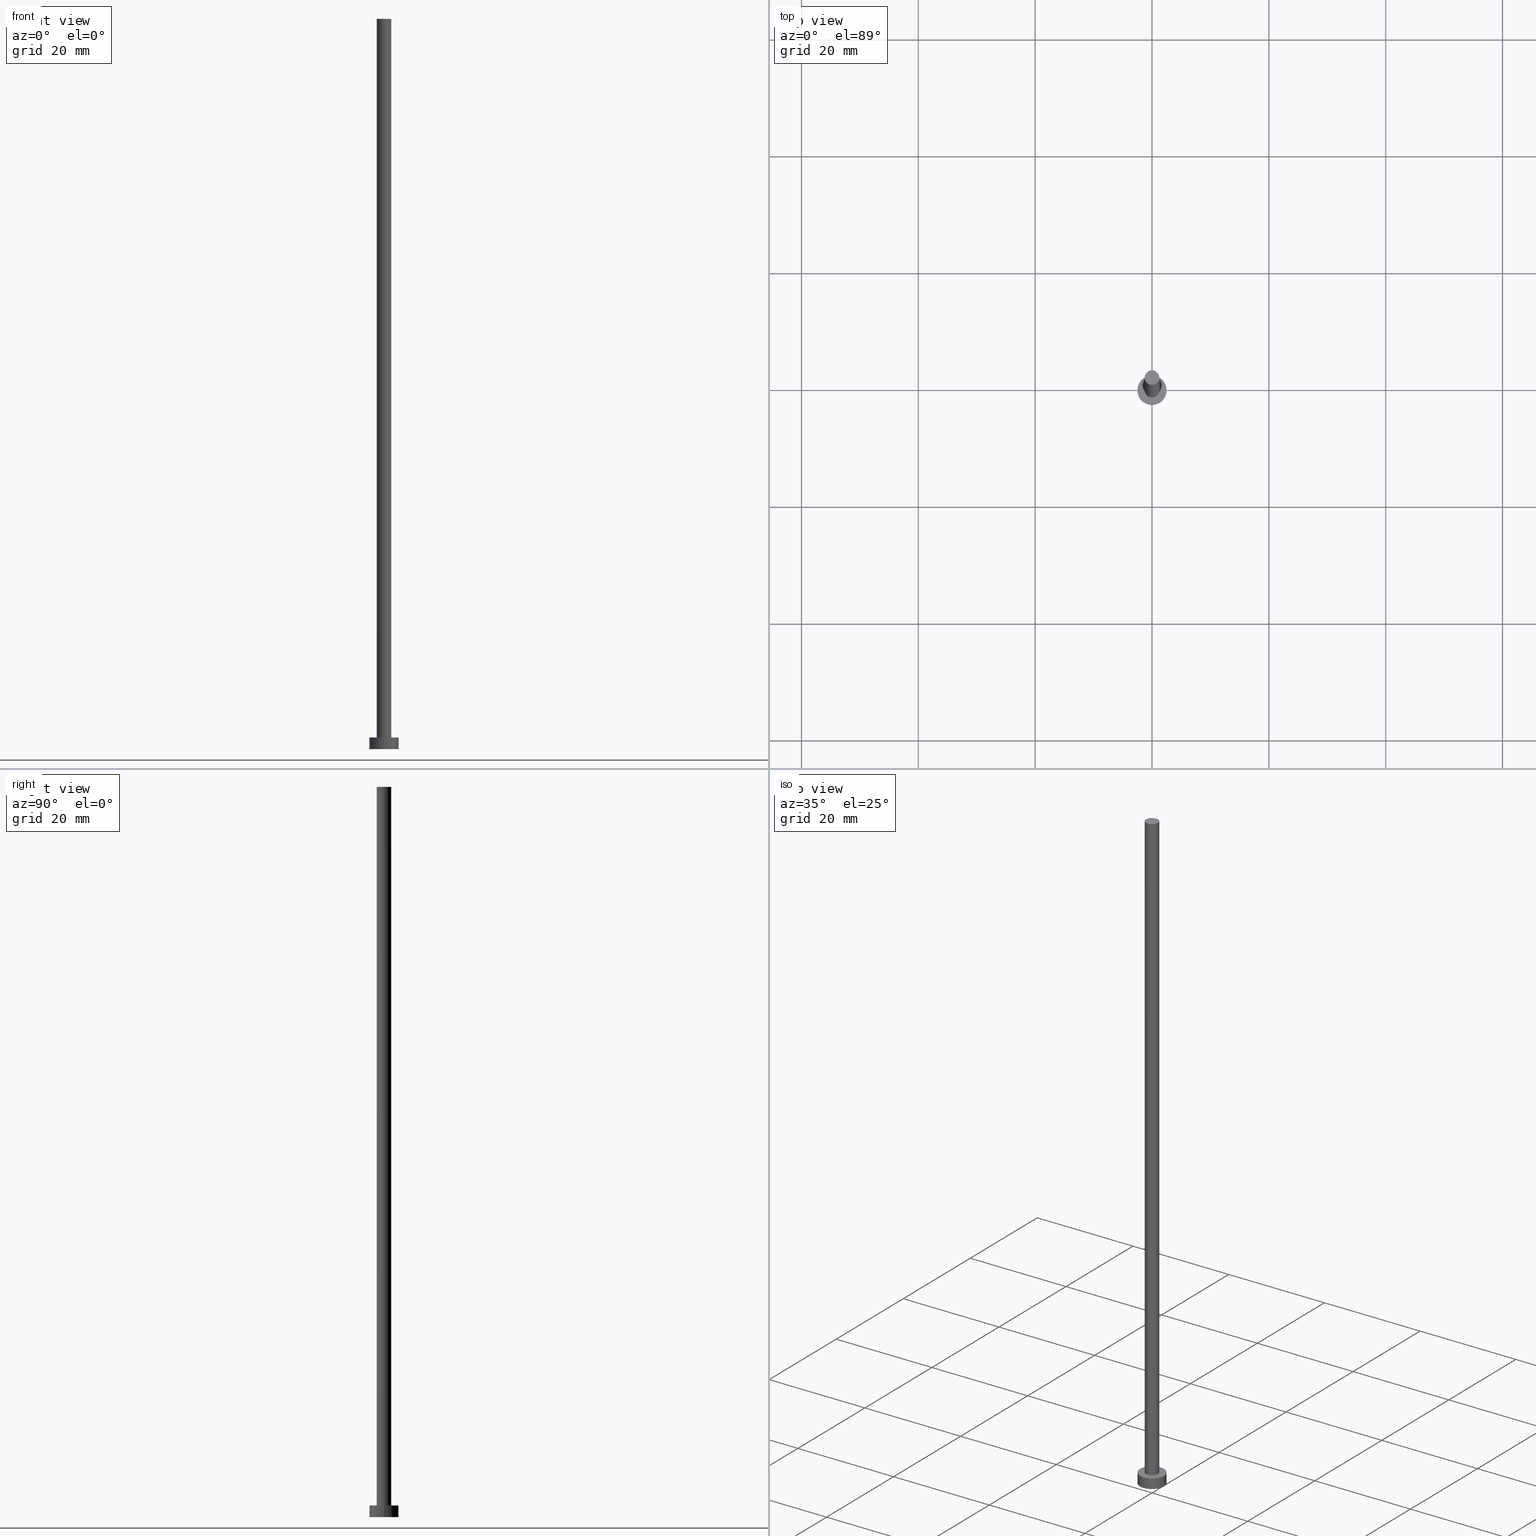
[diagram: canonical four-view strip — front | top / right | iso, engineering-drawing reading convention]
A machine part, canonical four-view strip (front | top / right | iso — engineering-drawing reading convention). The complete STEP part file that produces these views, byte-faithful:
ISO-10303-21;
HEADER;
FILE_DESCRIPTION (( 'STEP AP203' ),
    '1' );
FILE_NAME ('b8d0.STEP',
    '2023-02-12T12:49:30',
    ( '' ),
    ( '' ),
    'SwSTEP 2.0',
    'SolidWorks 2019',
    '' );
FILE_SCHEMA (( 'CONFIG_CONTROL_DESIGN' ));
ENDSEC;

DATA;
#1 = EDGE_CURVE ( 'NONE', #81, #77, #220, .T. ) ;
#2 = CARTESIAN_POINT ( 'NONE',  ( 0.000000000000000000, 0.000000000000000000, 0.000000000000000000 ) ) ;
#3 = ORIENTED_EDGE ( 'NONE', *, *, #1, .F. ) ;
#4 = PERSON_AND_ORGANIZATION ( #213, #88 ) ;
#5 = EDGE_LOOP ( 'NONE', ( #31, #200 ) ) ;
#6 = ADVANCED_FACE ( 'NONE', ( #227 ), #60, .F. ) ;
#7 = FACE_OUTER_BOUND ( 'NONE', #214, .T. ) ;
#8 = DIRECTION ( 'NONE',  ( 1.000000000000000000, 0.000000000000000000, 0.000000000000000000 ) ) ;
#9 = CARTESIAN_POINT ( 'NONE',  ( 2.500000000000000000, 3.061616997868383141E-16, 2.000000000000000000 ) ) ;
#10 = CIRCLE ( 'NONE', #110, 2.500000000000000000 ) ;
#11 = LINE ( 'NONE', #113, #167 ) ;
#12 =( NAMED_UNIT ( * ) SI_UNIT ( $, .STERADIAN. ) SOLID_ANGLE_UNIT ( ) );
#13 = DIRECTION ( 'NONE',  ( -0.000000000000000000, -0.000000000000000000, -1.000000000000000000 ) ) ;
#14 = PERSON_AND_ORGANIZATION_ROLE ( 'design_supplier' ) ;
#15 = CALENDAR_DATE ( 2023, 12, 2 ) ;
#16 = CALENDAR_DATE ( 2023, 12, 2 ) ;
#17 = PRODUCT_RELATED_PRODUCT_CATEGORY ( 'detail', '', ( #142 ) ) ;
#18 = ORIENTED_EDGE ( 'NONE', *, *, #243, .T. ) ;
#19 = EDGE_CURVE ( 'NONE', #77, #81, #75, .T. ) ;
#20 = ORIENTED_EDGE ( 'NONE', *, *, #64, .F. ) ;
#21 = CARTESIAN_POINT ( 'NONE',  ( 2.500000000000000000, 3.061616997868383141E-16, 2.000000000000000000 ) ) ;
#22 = SHAPE_DEFINITION_REPRESENTATION ( #100, #51 ) ;
#23 = APPROVAL_ROLE ( '' ) ;
#24 = MANIFOLD_SOLID_BREP ( 'P�idat vysunut�m3', #171 ) ;
#25 = CALENDAR_DATE ( 2023, 12, 2 ) ;
#26 = DIRECTION ( 'NONE',  ( 1.000000000000000000, 0.000000000000000000, 0.000000000000000000 ) ) ;
#27 = CARTESIAN_POINT ( 'NONE',  ( 0.000000000000000000, 0.000000000000000000, 2.000000000000000000 ) ) ;
#28 = APPROVAL ( #169, 'NEUR�EN�' ) ;
#29 = CARTESIAN_POINT ( 'NONE',  ( -1.250000000000000000, 0.000000000000000000, 125.0000000000000000 ) ) ;
#30 = APPLICATION_CONTEXT ( 'configuration controlled 3d designs of mechanical parts and assemblies' ) ;
#31 = ORIENTED_EDGE ( 'NONE', *, *, #1, .T. ) ;
#32 = DATE_AND_TIME ( #15, #176 ) ;
#33 = AXIS2_PLACEMENT_3D ( 'NONE', #2, #154, #56 ) ;
#34 = PERSON_AND_ORGANIZATION ( #213, #88 ) ;
#35 = EDGE_CURVE ( 'NONE', #87, #93, #52, .T. ) ;
#36 = DIRECTION ( 'NONE',  ( 0.000000000000000000, 0.000000000000000000, 1.000000000000000000 ) ) ;
#37 = ORIENTED_EDGE ( 'NONE', *, *, #119, .T. ) ;
#38 = APPROVAL_STATUS ( 'not_yet_approved' ) ;
#39 = VECTOR ( 'NONE', #157, 1000.000000000000000 ) ;
#40 = LOCAL_TIME ( 13, 49, 30.00000000000000000, #74 ) ;
#41 = DIRECTION ( 'NONE',  ( 0.000000000000000000, 0.000000000000000000, 1.000000000000000000 ) ) ;
#42 = ADVANCED_FACE ( 'NONE', ( #192, #238 ), #58, .T. ) ;
#43 = ORIENTED_EDGE ( 'NONE', *, *, #64, .T. ) ;
#44 = APPROVAL ( #130, 'NEUR�EN�' ) ;
#45 = CARTESIAN_POINT ( 'NONE',  ( 0.000000000000000000, 0.000000000000000000, 125.0000000000000000 ) ) ;
#46 = COORDINATED_UNIVERSAL_TIME_OFFSET ( 1, 0, .AHEAD. ) ;
#47 = DIRECTION ( 'NONE',  ( -0.000000000000000000, -0.000000000000000000, -1.000000000000000000 ) ) ;
#48 = DIRECTION ( 'NONE',  ( -0.000000000000000000, -0.000000000000000000, -1.000000000000000000 ) ) ;
#49 = AXIS2_PLACEMENT_3D ( 'NONE', #147, #164, #85 ) ;
#50 = EDGE_CURVE ( 'NONE', #77, #93, #225, .T. ) ;
#51 = ADVANCED_BREP_SHAPE_REPRESENTATION ( 'b8d0', ( #24, #33 ), #143 ) ;
#52 = CIRCLE ( 'NONE', #198, 2.500000000000000000 ) ;
#53 = CARTESIAN_POINT ( 'NONE',  ( -1.250000000000000000, 0.000000000000000000, 2.000000000000000000 ) ) ;
#54 = CIRCLE ( 'NONE', #168, 1.250000000000000000 ) ;
#55 = ADVANCED_FACE ( 'NONE', ( #134 ), #158, .T. ) ;
#56 = DIRECTION ( 'NONE',  ( 1.000000000000000000, 0.000000000000000000, 0.000000000000000000 ) ) ;
#57 = VERTEX_POINT ( 'NONE', #62 ) ;
#58 = PLANE ( 'NONE',  #177 ) ;
#59 = ORIENTED_EDGE ( 'NONE', *, *, #191, .F. ) ;
#60 = PLANE ( 'NONE',  #61 ) ;
#61 = AXIS2_PLACEMENT_3D ( 'NONE', #219, #132, #172 ) ;
#62 = CARTESIAN_POINT ( 'NONE',  ( 1.250000000000000000, 1.530808498934191571E-16, 125.0000000000000000 ) ) ;
#63 = ORIENTED_EDGE ( 'NONE', *, *, #50, .T. ) ;
#64 = EDGE_CURVE ( 'NONE', #125, #244, #111, .T. ) ;
#65 = CARTESIAN_POINT ( 'NONE',  ( 1.250000000000000000, 1.530808498934191571E-16, 2.000000000000000000 ) ) ;
#66 = CC_DESIGN_APPROVAL ( #28, ( #109 ) ) ;
#67 = EDGE_LOOP ( 'NONE', ( #140, #153, #43, #37 ) ) ;
#68 = LINE ( 'NONE', #231, #159 ) ;
#69 = APPROVAL_PERSON_ORGANIZATION ( #166, #96, #248 ) ;
#70 = DIRECTION ( 'NONE',  ( -0.000000000000000000, -0.000000000000000000, -1.000000000000000000 ) ) ;
#71 = PERSON_AND_ORGANIZATION ( #213, #88 ) ;
#72 = CC_DESIGN_PERSON_AND_ORGANIZATION_ASSIGNMENT ( #34, #234, ( #142 ) ) ;
#73 = EDGE_LOOP ( 'NONE', ( #235, #173 ) ) ;
#74 = COORDINATED_UNIVERSAL_TIME_OFFSET ( 1, 0, .AHEAD. ) ;
#75 = CIRCLE ( 'NONE', #205, 2.500000000000000000 ) ;
#76 = CC_DESIGN_DATE_AND_TIME_ASSIGNMENT ( #194, #165, ( #221 ) ) ;
#77 = VERTEX_POINT ( 'NONE', #9 ) ;
#78 = DIRECTION ( 'NONE',  ( 0.000000000000000000, 0.000000000000000000, 1.000000000000000000 ) ) ;
#79 = UNCERTAINTY_MEASURE_WITH_UNIT (LENGTH_MEASURE( 1.000000000000000082E-05 ), #149, 'distance_accuracy_value', 'NONE');
#80 = ORIENTED_EDGE ( 'NONE', *, *, #50, .F. ) ;
#81 = VERTEX_POINT ( 'NONE', #99 ) ;
#82 = DIRECTION ( 'NONE',  ( -1.000000000000000000, 0.000000000000000000, 0.000000000000000000 ) ) ;
#83 = DIRECTION ( 'NONE',  ( 0.000000000000000000, 0.000000000000000000, 1.000000000000000000 ) ) ;
#84 = CARTESIAN_POINT ( 'NONE',  ( 0.000000000000000000, 0.000000000000000000, 125.0000000000000000 ) ) ;
#85 = DIRECTION ( 'NONE',  ( 1.000000000000000000, 0.000000000000000000, 0.000000000000000000 ) ) ;
#86 = CC_DESIGN_DATE_AND_TIME_ASSIGNMENT ( #90, #237, ( #109 ) ) ;
#87 = VERTEX_POINT ( 'NONE', #160 ) ;
#88 = ORGANIZATION ( 'NEUR�EN�', 'NEUR�EN�', '' ) ;
#89 = PERSON_AND_ORGANIZATION ( #213, #88 ) ;
#90 = DATE_AND_TIME ( #16, #98 ) ;
#91 = ORIENTED_EDGE ( 'NONE', *, *, #133, .T. ) ;
#92 = ADVANCED_FACE ( 'NONE', ( #242 ), #138, .T. ) ;
#93 = VERTEX_POINT ( 'NONE', #114 ) ;
#94 = CALENDAR_DATE ( 2023, 12, 2 ) ;
#95 = APPROVAL_PERSON_ORGANIZATION ( #4, #44, #23 ) ;
#96 = APPROVAL ( #38, 'NEUR�EN�' ) ;
#97 = AXIS2_PLACEMENT_3D ( 'NONE', #222, #47, #181 ) ;
#98 = LOCAL_TIME ( 13, 49, 30.00000000000000000, #212 ) ;
#99 = CARTESIAN_POINT ( 'NONE',  ( -2.500000000000000000, 0.000000000000000000, 2.000000000000000000 ) ) ;
#100 = PRODUCT_DEFINITION_SHAPE ( 'NONE', 'NONE',  #109 ) ;
#101 = DIRECTION ( 'NONE',  ( 0.000000000000000000, 0.000000000000000000, 1.000000000000000000 ) ) ;
#102 = DIRECTION ( 'NONE',  ( 0.000000000000000000, 0.000000000000000000, 1.000000000000000000 ) ) ;
#103 = LOCAL_TIME ( 13, 49, 30.00000000000000000, #46 ) ;
#104 = APPROVAL_DATE_TIME ( #122, #28 ) ;
#105 = MECHANICAL_CONTEXT ( 'NONE', #250, 'mechanical' ) ;
#106 = ORIENTED_EDGE ( 'NONE', *, *, #19, .F. ) ;
#107 = EDGE_LOOP ( 'NONE', ( #106, #63, #216, #124 ) ) ;
#108 = DIRECTION ( 'NONE',  ( 1.000000000000000000, 0.000000000000000000, 0.000000000000000000 ) ) ;
#109 = PRODUCT_DEFINITION ( 'NEZN�M�', '', #179, #139 ) ;
#110 = AXIS2_PLACEMENT_3D ( 'NONE', #112, #101, #135 ) ;
#111 = LINE ( 'NONE', #180, #187 ) ;
#112 = CARTESIAN_POINT ( 'NONE',  ( 0.000000000000000000, 0.000000000000000000, 0.000000000000000000 ) ) ;
#113 = CARTESIAN_POINT ( 'NONE',  ( -2.500000000000000000, 0.000000000000000000, 2.000000000000000000 ) ) ;
#114 = CARTESIAN_POINT ( 'NONE',  ( 2.500000000000000000, 3.061616997868383141E-16, 0.000000000000000000 ) ) ;
#115 = DIRECTION ( 'NONE',  ( -0.000000000000000000, -0.000000000000000000, -1.000000000000000000 ) ) ;
#116 = AXIS2_PLACEMENT_3D ( 'NONE', #253, #115, #228 ) ;
#117 = CYLINDRICAL_SURFACE ( 'NONE', #116, 2.500000000000000000 ) ;
#118 = PERSON_AND_ORGANIZATION_ROLE ( 'creator' ) ;
#119 = EDGE_CURVE ( 'NONE', #244, #175, #217, .T. ) ;
#120 = CC_DESIGN_SECURITY_CLASSIFICATION ( #221, ( #179 ) ) ;
#121 = AXIS2_PLACEMENT_3D ( 'NONE', #27, #102, #148 ) ;
#122 = DATE_AND_TIME ( #230, #40 ) ;
#123 = ORIENTED_EDGE ( 'NONE', *, *, #191, .T. ) ;
#124 = ORIENTED_EDGE ( 'NONE', *, *, #156, .F. ) ;
#125 = VERTEX_POINT ( 'NONE', #29 ) ;
#126 = DIRECTION ( 'NONE',  ( 1.000000000000000000, 0.000000000000000000, 0.000000000000000000 ) ) ;
#127 = CIRCLE ( 'NONE', #239, 1.250000000000000000 ) ;
#128 = CC_DESIGN_APPROVAL ( #44, ( #221 ) ) ;
#129 = ORIENTED_EDGE ( 'NONE', *, *, #174, .T. ) ;
#130 = APPROVAL_STATUS ( 'not_yet_approved' ) ;
#131 = CARTESIAN_POINT ( 'NONE',  ( 0.000000000000000000, 0.000000000000000000, 2.000000000000000000 ) ) ;
#132 = DIRECTION ( 'NONE',  ( 0.000000000000000000, 0.000000000000000000, 1.000000000000000000 ) ) ;
#133 = EDGE_CURVE ( 'NONE', #125, #57, #127, .T. ) ;
#134 = FACE_OUTER_BOUND ( 'NONE', #170, .T. ) ;
#135 = DIRECTION ( 'NONE',  ( 1.000000000000000000, 0.000000000000000000, 0.000000000000000000 ) ) ;
#136 = DIRECTION ( 'NONE',  ( 1.000000000000000000, 0.000000000000000000, -0.000000000000000000 ) ) ;
#137 = CC_DESIGN_PERSON_AND_ORGANIZATION_ASSIGNMENT ( #71, #254, ( #221 ) ) ;
#138 = CYLINDRICAL_SURFACE ( 'NONE', #249, 2.500000000000000000 ) ;
#139 = DESIGN_CONTEXT ( 'detailed design', #30, 'design' ) ;
#140 = ORIENTED_EDGE ( 'NONE', *, *, #243, .F. ) ;
#141 = COORDINATED_UNIVERSAL_TIME_OFFSET ( 1, 0, .AHEAD. ) ;
#142 = PRODUCT ( 'b8d0', 'b8d0', '', ( #105 ) ) ;
#143 =( GEOMETRIC_REPRESENTATION_CONTEXT ( 3 ) GLOBAL_UNCERTAINTY_ASSIGNED_CONTEXT ( ( #79 ) ) GLOBAL_UNIT_ASSIGNED_CONTEXT ( ( #149, #210, #12 ) ) REPRESENTATION_CONTEXT ( 'NONE', 'WORKASPACE' ) );
#144 = CIRCLE ( 'NONE', #49, 1.250000000000000000 ) ;
#145 = CARTESIAN_POINT ( 'NONE',  ( 0.000000000000000000, 0.000000000000000000, 2.000000000000000000 ) ) ;
#146 = CC_DESIGN_PERSON_AND_ORGANIZATION_ASSIGNMENT ( #207, #14, ( #179 ) ) ;
#147 = CARTESIAN_POINT ( 'NONE',  ( 0.000000000000000000, 0.000000000000000000, 2.000000000000000000 ) ) ;
#148 = DIRECTION ( 'NONE',  ( 1.000000000000000000, 0.000000000000000000, 0.000000000000000000 ) ) ;
#149 =( LENGTH_UNIT ( ) NAMED_UNIT ( * ) SI_UNIT ( .MILLI., .METRE. ) );
#150 = PERSON_AND_ORGANIZATION_ROLE ( 'creator' ) ;
#151 = EDGE_LOOP ( 'NONE', ( #224, #59 ) ) ;
#152 = APPROVAL_DATE_TIME ( #182, #44 ) ;
#153 = ORIENTED_EDGE ( 'NONE', *, *, #133, .F. ) ;
#154 = DIRECTION ( 'NONE',  ( 0.000000000000000000, 0.000000000000000000, 1.000000000000000000 ) ) ;
#155 = CARTESIAN_POINT ( 'NONE',  ( 0.000000000000000000, 0.000000000000000000, 0.000000000000000000 ) ) ;
#156 = EDGE_CURVE ( 'NONE', #81, #87, #11, .T. ) ;
#157 = DIRECTION ( 'NONE',  ( -0.000000000000000000, -0.000000000000000000, -1.000000000000000000 ) ) ;
#158 = CYLINDRICAL_SURFACE ( 'NONE', #97, 1.250000000000000000 ) ;
#159 = VECTOR ( 'NONE', #13, 1000.000000000000000 ) ;
#160 = CARTESIAN_POINT ( 'NONE',  ( -2.500000000000000000, 0.000000000000000000, 0.000000000000000000 ) ) ;
#161 = AXIS2_PLACEMENT_3D ( 'NONE', #208, #70, #247 ) ;
#162 = DIRECTION ( 'NONE',  ( 0.000000000000000000, 0.000000000000000000, 1.000000000000000000 ) ) ;
#163 = EDGE_CURVE ( 'NONE', #93, #87, #10, .T. ) ;
#164 = DIRECTION ( 'NONE',  ( 0.000000000000000000, 0.000000000000000000, 1.000000000000000000 ) ) ;
#165 = DATE_TIME_ROLE ( 'classification_date' ) ;
#166 = PERSON_AND_ORGANIZATION ( #213, #88 ) ;
#167 = VECTOR ( 'NONE', #226, 1000.000000000000000 ) ;
#168 = AXIS2_PLACEMENT_3D ( 'NONE', #45, #83, #8 ) ;
#169 = APPROVAL_STATUS ( 'not_yet_approved' ) ;
#170 = EDGE_LOOP ( 'NONE', ( #201, #18, #123, #20 ) ) ;
#171 = CLOSED_SHELL ( 'NONE', ( #55, #211, #92, #42, #6, #233, #184 ) ) ;
#172 = DIRECTION ( 'NONE',  ( 1.000000000000000000, 0.000000000000000000, -0.000000000000000000 ) ) ;
#173 = ORIENTED_EDGE ( 'NONE', *, *, #163, .F. ) ;
#174 = EDGE_CURVE ( 'NONE', #57, #125, #54, .T. ) ;
#175 = VERTEX_POINT ( 'NONE', #65 ) ;
#176 = LOCAL_TIME ( 13, 49, 30.00000000000000000, #229 ) ;
#177 = AXIS2_PLACEMENT_3D ( 'NONE', #131, #41, #196 ) ;
#178 = DIRECTION ( 'NONE',  ( -0.000000000000000000, -0.000000000000000000, -1.000000000000000000 ) ) ;
#179 = PRODUCT_DEFINITION_FORMATION_WITH_SPECIFIED_SOURCE ( 'LIBOVOLN�', '', #142, .NOT_KNOWN. ) ;
#180 = CARTESIAN_POINT ( 'NONE',  ( -1.250000000000000000, 0.000000000000000000, 125.0000000000000000 ) ) ;
#181 = DIRECTION ( 'NONE',  ( -1.000000000000000000, 0.000000000000000000, 0.000000000000000000 ) ) ;
#182 = DATE_AND_TIME ( #25, #245 ) ;
#183 = DIRECTION ( 'NONE',  ( 0.000000000000000000, 0.000000000000000000, 1.000000000000000000 ) ) ;
#184 = ADVANCED_FACE ( 'NONE', ( #7 ), #203, .T. ) ;
#185 = FACE_OUTER_BOUND ( 'NONE', #107, .T. ) ;
#186 = PERSON_AND_ORGANIZATION ( #213, #88 ) ;
#187 = VECTOR ( 'NONE', #178, 1000.000000000000000 ) ;
#188 = AXIS2_PLACEMENT_3D ( 'NONE', #240, #78, #136 ) ;
#189 = PERSON_AND_ORGANIZATION ( #213, #88 ) ;
#190 = APPROVAL_ROLE ( '' ) ;
#191 = EDGE_CURVE ( 'NONE', #175, #244, #144, .T. ) ;
#192 = FACE_BOUND ( 'NONE', #151, .T. ) ;
#193 = ORIENTED_EDGE ( 'NONE', *, *, #35, .T. ) ;
#194 = DATE_AND_TIME ( #94, #103 ) ;
#195 = DIRECTION ( 'NONE',  ( 0.000000000000000000, 0.000000000000000000, 1.000000000000000000 ) ) ;
#196 = DIRECTION ( 'NONE',  ( 1.000000000000000000, 0.000000000000000000, -0.000000000000000000 ) ) ;
#197 = CARTESIAN_POINT ( 'NONE',  ( 0.000000000000000000, 0.000000000000000000, 2.000000000000000000 ) ) ;
#198 = AXIS2_PLACEMENT_3D ( 'NONE', #155, #36, #108 ) ;
#199 = CC_DESIGN_PERSON_AND_ORGANIZATION_ASSIGNMENT ( #89, #150, ( #109 ) ) ;
#200 = ORIENTED_EDGE ( 'NONE', *, *, #19, .T. ) ;
#201 = ORIENTED_EDGE ( 'NONE', *, *, #174, .F. ) ;
#202 = APPLICATION_PROTOCOL_DEFINITION ( 'international standard', 'config_control_design', 1994, #250 ) ;
#203 = PLANE ( 'NONE',  #188 ) ;
#204 = DIRECTION ( 'NONE',  ( 1.000000000000000000, 0.000000000000000000, 0.000000000000000000 ) ) ;
#205 = AXIS2_PLACEMENT_3D ( 'NONE', #197, #195, #126 ) ;
#206 = FACE_OUTER_BOUND ( 'NONE', #67, .T. ) ;
#207 = PERSON_AND_ORGANIZATION ( #213, #88 ) ;
#208 = CARTESIAN_POINT ( 'NONE',  ( 0.000000000000000000, 0.000000000000000000, 125.0000000000000000 ) ) ;
#209 = APPROVAL_PERSON_ORGANIZATION ( #186, #28, #190 ) ;
#210 =( NAMED_UNIT ( * ) PLANE_ANGLE_UNIT ( ) SI_UNIT ( $, .RADIAN. ) );
#211 = ADVANCED_FACE ( 'NONE', ( #185 ), #117, .T. ) ;
#212 = COORDINATED_UNIVERSAL_TIME_OFFSET ( 1, 0, .AHEAD. ) ;
#213 = PERSON ( 'NEUR�EN�', 'NEUR�EN�', 'NEUR�EN�', ('NEUR�EN�'), ('NEUR�EN�'), ('NEUR�EN�') ) ;
#214 = EDGE_LOOP ( 'NONE', ( #91, #129 ) ) ;
#215 = ORIENTED_EDGE ( 'NONE', *, *, #156, .T. ) ;
#216 = ORIENTED_EDGE ( 'NONE', *, *, #163, .T. ) ;
#217 = CIRCLE ( 'NONE', #246, 1.250000000000000000 ) ;
#218 = CC_DESIGN_APPROVAL ( #96, ( #179 ) ) ;
#219 = CARTESIAN_POINT ( 'NONE',  ( 0.000000000000000000, 0.000000000000000000, 0.000000000000000000 ) ) ;
#220 = CIRCLE ( 'NONE', #121, 2.500000000000000000 ) ;
#221 = SECURITY_CLASSIFICATION ( '', '', #251 ) ;
#222 = CARTESIAN_POINT ( 'NONE',  ( 0.000000000000000000, 0.000000000000000000, 125.0000000000000000 ) ) ;
#223 = CARTESIAN_POINT ( 'NONE',  ( 0.000000000000000000, 0.000000000000000000, 2.000000000000000000 ) ) ;
#224 = ORIENTED_EDGE ( 'NONE', *, *, #119, .F. ) ;
#225 = LINE ( 'NONE', #21, #39 ) ;
#226 = DIRECTION ( 'NONE',  ( -0.000000000000000000, -0.000000000000000000, -1.000000000000000000 ) ) ;
#227 = FACE_OUTER_BOUND ( 'NONE', #73, .T. ) ;
#228 = DIRECTION ( 'NONE',  ( -1.000000000000000000, 0.000000000000000000, 0.000000000000000000 ) ) ;
#229 = COORDINATED_UNIVERSAL_TIME_OFFSET ( 1, 0, .AHEAD. ) ;
#230 = CALENDAR_DATE ( 2023, 12, 2 ) ;
#231 = CARTESIAN_POINT ( 'NONE',  ( 1.250000000000000000, 1.530808498934191571E-16, 125.0000000000000000 ) ) ;
#232 = CYLINDRICAL_SURFACE ( 'NONE', #161, 1.250000000000000000 ) ;
#233 = ADVANCED_FACE ( 'NONE', ( #206 ), #232, .T. ) ;
#234 = PERSON_AND_ORGANIZATION_ROLE ( 'design_owner' ) ;
#235 = ORIENTED_EDGE ( 'NONE', *, *, #35, .F. ) ;
#236 = APPROVAL_DATE_TIME ( #32, #96 ) ;
#237 = DATE_TIME_ROLE ( 'creation_date' ) ;
#238 = FACE_OUTER_BOUND ( 'NONE', #5, .T. ) ;
#239 = AXIS2_PLACEMENT_3D ( 'NONE', #84, #162, #26 ) ;
#240 = CARTESIAN_POINT ( 'NONE',  ( 0.000000000000000000, 0.000000000000000000, 125.0000000000000000 ) ) ;
#241 = CC_DESIGN_PERSON_AND_ORGANIZATION_ASSIGNMENT ( #189, #118, ( #179 ) ) ;
#242 = FACE_OUTER_BOUND ( 'NONE', #255, .T. ) ;
#243 = EDGE_CURVE ( 'NONE', #57, #175, #68, .T. ) ;
#244 = VERTEX_POINT ( 'NONE', #53 ) ;
#245 = LOCAL_TIME ( 13, 49, 30.00000000000000000, #141 ) ;
#246 = AXIS2_PLACEMENT_3D ( 'NONE', #145, #183, #204 ) ;
#247 = DIRECTION ( 'NONE',  ( -1.000000000000000000, 0.000000000000000000, 0.000000000000000000 ) ) ;
#248 = APPROVAL_ROLE ( '' ) ;
#249 = AXIS2_PLACEMENT_3D ( 'NONE', #223, #48, #82 ) ;
#250 = APPLICATION_CONTEXT ( 'configuration controlled 3d designs of mechanical parts and assemblies' ) ;
#251 = SECURITY_CLASSIFICATION_LEVEL ( 'unclassified' ) ;
#252 = APPLICATION_PROTOCOL_DEFINITION ( 'international standard', 'config_control_design', 1994, #30 ) ;
#253 = CARTESIAN_POINT ( 'NONE',  ( 0.000000000000000000, 0.000000000000000000, 2.000000000000000000 ) ) ;
#254 = PERSON_AND_ORGANIZATION_ROLE ( 'classification_officer' ) ;
#255 = EDGE_LOOP ( 'NONE', ( #80, #3, #215, #193 ) ) ;
ENDSEC;
END-ISO-10303-21;
